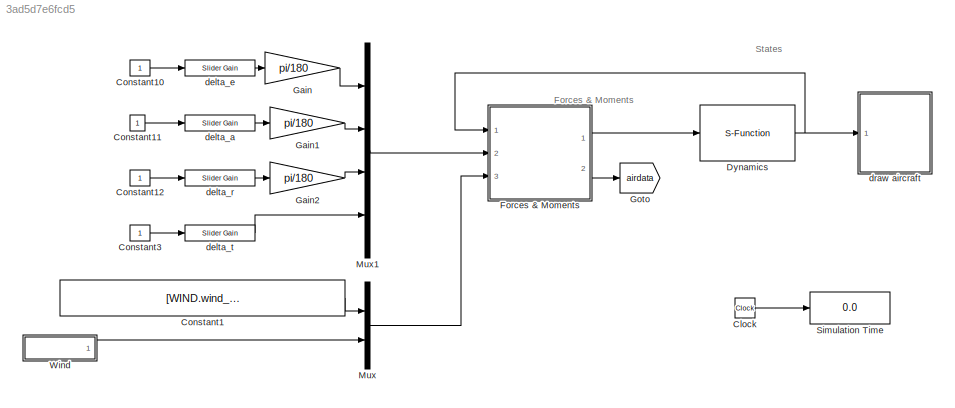
MODEL slx_3ad5d7e6fcd5
KIND model
CONFIG AbsTol = auto
CONFIG EnableMultiTasking = on
CONFIG FixedStep = auto
CONFIG InitFcn = addpath('../chapter4')\naddpath('../parameters/')\naerosonde_parameters\nsimulation_parameters\nwind_parameters\naddpath('../chap3')\naddpath('../chap4')\n
CONFIG MaxStep = auto
CONFIG MinStep = auto
CONFIG RelTol = 1e-3
CONFIG SampleTimeConstraint = Unconstrained
CONFIG Solver = ode45
CONFIG SolverName = ode45
CONFIG StartTime = 0.0
CONFIG StopTime = 10000
BLOCK [Clock] Clock
BLOCK [Constant] Constant1
  Value = [WIND.wind_n; WIND.wind_e; WIND.wind_d]
BLOCK [Constant] Constant10
BLOCK [Constant] Constant11
BLOCK [Constant] Constant12
BLOCK [Constant] Constant3
BLOCK [S-Function] Dynamics
  EnableBusSupport = off
  FunctionName = mav_dynamics
  Parameters = MAV
  Ports = [1, 1]
  SFcnIsStateOwnerBlock = off
  SFunctionDeploymentMode = off
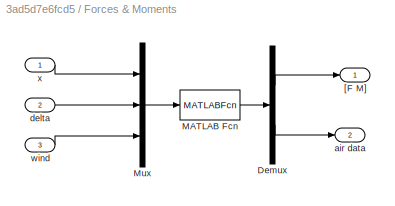
BLOCK [SubSystem] Forces & Moments
  Ports = [3, 2]
  RequestExecContextInheritance = off
BLOCK [Demux] Forces & Moments/Demux
  Outputs = [6;6]
  Ports = [1, 2]
BLOCK [MATLABFcn] Forces & Moments/MATLAB Fcn
  MATLABFcn = forces_moments(u(1:12),u(13:16),u(17:22),MAV)
  OutputDimensions = 12
  Ports = [1, 1]
BLOCK [Mux] Forces & Moments/Mux
  DisplayOption = bar
  Inputs = 3
  Ports = [3, 1]
BLOCK [Outport] Forces & Moments/[F M]
  VectorParamsAs1DForOutWhenUnconnected = off
BLOCK [Outport] Forces & Moments/air data
  Port = 2
  VectorParamsAs1DForOutWhenUnconnected = off
BLOCK [Inport] Forces & Moments/delta
  Port = 2
BLOCK [Inport] Forces & Moments/wind
  Port = 3
BLOCK [Inport] Forces & Moments/x
BLOCK [Gain] Gain
  Gain = pi/180
BLOCK [Gain] Gain1
  Gain = pi/180
BLOCK [Gain] Gain2
  Gain = pi/180
BLOCK [Goto] Goto
  GotoTag = airdata
  TagVisibility = global
BLOCK [Mux] Mux
  DisplayOption = bar
  Inputs = 2
  Ports = [2, 1]
BLOCK [Mux] Mux1
  DisplayOption = bar
  Ports = [4, 1]
BLOCK [Display] Simulation Time
  Decimation = 1
  Ports = [1]
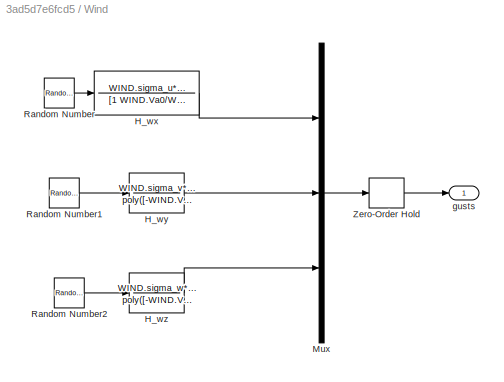
BLOCK [SubSystem] Wind
  Ports = [0, 1]
  RequestExecContextInheritance = off
BLOCK [TransferFcn] Wind/H_wx
  Denominator = [1 WIND.Va0/WIND.L_u]
  Numerator = WIND.sigma_u*sqrt(2*WIND.Va0/WIND.L_u)
BLOCK [TransferFcn] Wind/H_wy
  Denominator = poly([-WIND.Va0/WIND.L_v, -WIND.Va0/WIND.L_v])
  Numerator = WIND.sigma_v*sqrt(3*WIND.Va0/WIND.L_v)*[0, 1, WIND.Va0/sqrt(3)/WIND.L_v]
BLOCK [TransferFcn] Wind/H_wz
  Denominator = poly([-WIND.Va0/WIND.L_w, -WIND.Va0/WIND.L_w])
  Numerator = WIND.sigma_w*sqrt(3*WIND.Va0/WIND.L_w)*[0, 1, WIND.Va0/sqrt(3)/WIND.L_w]
BLOCK [Mux] Wind/Mux
  DisplayOption = bar
  Inputs = 3
  Ports = [3, 1]
BLOCK [RandomNumber] Wind/Random Number
  SampleTime = 0
BLOCK [RandomNumber] Wind/Random Number1
  SampleTime = 0
BLOCK [RandomNumber] Wind/Random Number2
  SampleTime = 0
BLOCK [ZeroOrderHold] Wind/Zero-Order Hold
  SampleTime = SIM.ts_simulation
BLOCK [Outport] Wind/gusts
  VectorParamsAs1DForOutWhenUnconnected = off
BLOCK [Reference] delta_a  REF=simulink/Math
Operations/Slider
Gain
  Ports = [1, 1]
  SourceBlock = simulink/Math\nOperations/Slider\nGain
  SourceProductBaseCode = SL
  SourceType = Slider Gain
BLOCK [Reference] delta_e  REF=simulink/Math
Operations/Slider
Gain
  Ports = [1, 1]
  SourceBlock = simulink/Math\nOperations/Slider\nGain
  SourceProductBaseCode = SL
  SourceType = Slider Gain
BLOCK [Reference] delta_r  REF=simulink/Math
Operations/Slider
Gain
  Ports = [1, 1]
  SourceBlock = simulink/Math\nOperations/Slider\nGain
  SourceProductBaseCode = SL
  SourceType = Slider Gain
BLOCK [Reference] delta_t  REF=simulink/Math
Operations/Slider
Gain
  Ports = [1, 1]
  SourceBlock = simulink/Math\nOperations/Slider\nGain
  SourceProductBaseCode = SL
  SourceType = Slider Gain
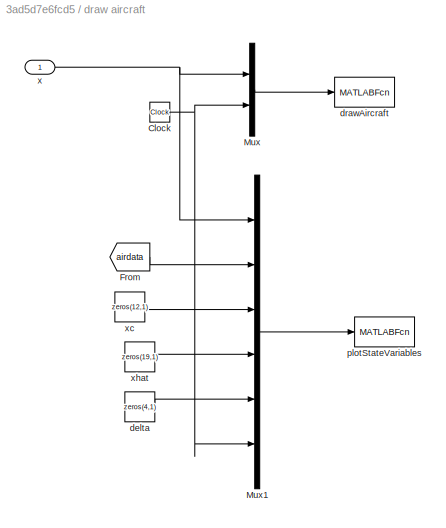
BLOCK [SubSystem] draw aircraft
  Ports = [1]
  RequestExecContextInheritance = off
BLOCK [Clock] draw aircraft/Clock
BLOCK [From] draw aircraft/From
  GotoTag = airdata
  TagVisibility = global
BLOCK [Mux] draw aircraft/Mux
  DisplayOption = bar
  Inputs = 2
  Ports = [2, 1]
BLOCK [Mux] draw aircraft/Mux1
  DisplayOption = bar
  Inputs = 6
  Ports = [6, 1]
BLOCK [Constant] draw aircraft/delta
  Value = zeros(4,1)
BLOCK [MATLABFcn] draw aircraft/drawAircraft
  MATLABFcn = drawAircraft(u)
  OutputDimensions = 0
  Ports = [1]
  SampleTime = 0.1
BLOCK [MATLABFcn] draw aircraft/plotStateVariables
  MATLABFcn = plotmavstatevariables(u)
  OutputDimensions = 0
  Ports = [1]
  SampleTime = 0.1
BLOCK [Inport] draw aircraft/x
BLOCK [Constant] draw aircraft/xc
  Value = zeros(12,1)
BLOCK [Constant] draw aircraft/xhat
  Value = zeros(19,1)
ANNOTATION (root): Forces & Moments
ANNOTATION (root): States
LINE Clock:1 -> Simulation Time:1
LINE Constant10:1 -> delta_e:1
LINE Constant11:1 -> delta_a:1
LINE Constant12:1 -> delta_r:1
LINE Constant1:1 -> Mux:1
LINE Constant3:1 -> delta_t:1
NET Dynamics:1 -> Forces & Moments:1, draw aircraft:1
LINE Forces & Moments/Demux:1 -> Forces & Moments/[F M]:1
LINE Forces & Moments/Demux:2 -> Forces & Moments/air data:1
LINE Forces & Moments/MATLAB Fcn:1 -> Forces & Moments/Demux:1
LINE Forces & Moments/Mux:1 -> Forces & Moments/MATLAB Fcn:1
LINE Forces & Moments/delta:1 -> Forces & Moments/Mux:2
LINE Forces & Moments/wind:1 -> Forces & Moments/Mux:3
LINE Forces & Moments/x:1 -> Forces & Moments/Mux:1
LINE Forces & Moments:1 -> Dynamics:1
LINE Forces & Moments:2 -> Goto:1
LINE Gain1:1 -> Mux1:2
LINE Gain2:1 -> Mux1:3
LINE Gain:1 -> Mux1:1
LINE Mux1:1 -> Forces & Moments:2
LINE Mux:1 -> Forces & Moments:3
LINE Wind/H_wx:1 -> Wind/Mux:1
LINE Wind/H_wy:1 -> Wind/Mux:2
LINE Wind/H_wz:1 -> Wind/Mux:3
LINE Wind/Mux:1 -> Wind/Zero-Order Hold:1
LINE Wind/Random Number1:1 -> Wind/H_wy:1
LINE Wind/Random Number2:1 -> Wind/H_wz:1
LINE Wind/Random Number:1 -> Wind/H_wx:1
LINE Wind/Zero-Order Hold:1 -> Wind/gusts:1
LINE Wind:1 -> Mux:2
LINE delta_a:1 -> Gain1:1
LINE delta_e:1 -> Gain:1
LINE delta_r:1 -> Gain2:1
LINE delta_t:1 -> Mux1:4
NET draw aircraft/Clock:1 -> draw aircraft/Mux1:6, draw aircraft/Mux:2
LINE draw aircraft/From:1 -> draw aircraft/Mux1:2
LINE draw aircraft/Mux1:1 -> draw aircraft/plotStateVariables:1
LINE draw aircraft/Mux:1 -> draw aircraft/drawAircraft:1
LINE draw aircraft/delta:1 -> draw aircraft/Mux1:5
NET draw aircraft/x:1 -> draw aircraft/Mux1:1, draw aircraft/Mux:1
LINE draw aircraft/xc:1 -> draw aircraft/Mux1:3
LINE draw aircraft/xhat:1 -> draw aircraft/Mux1:4
note: NET lines group one-source signal fan-out (src -> all destinations, sorted); 1:1 wires keep LINE
